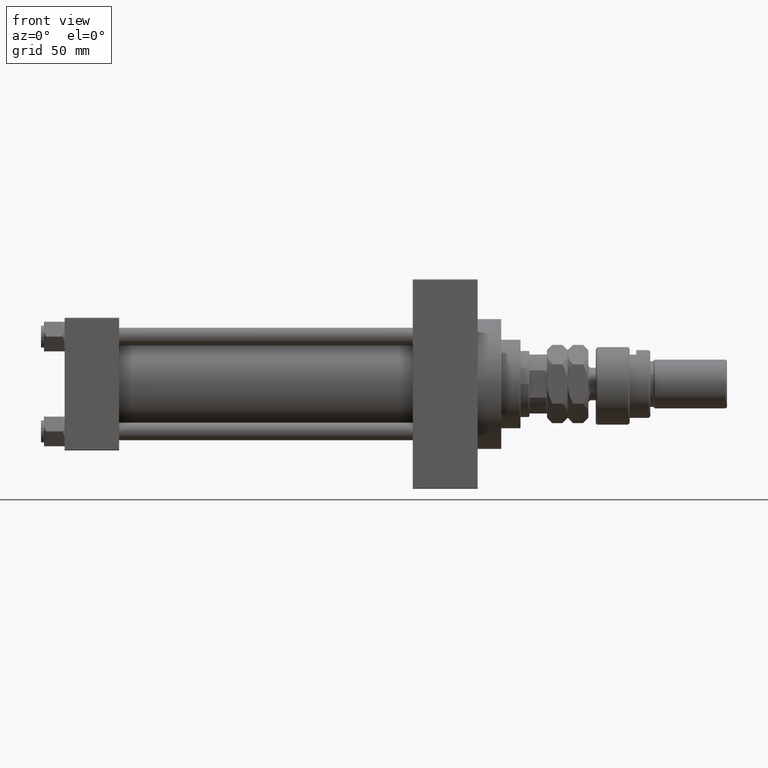
[diagram: clean part render]
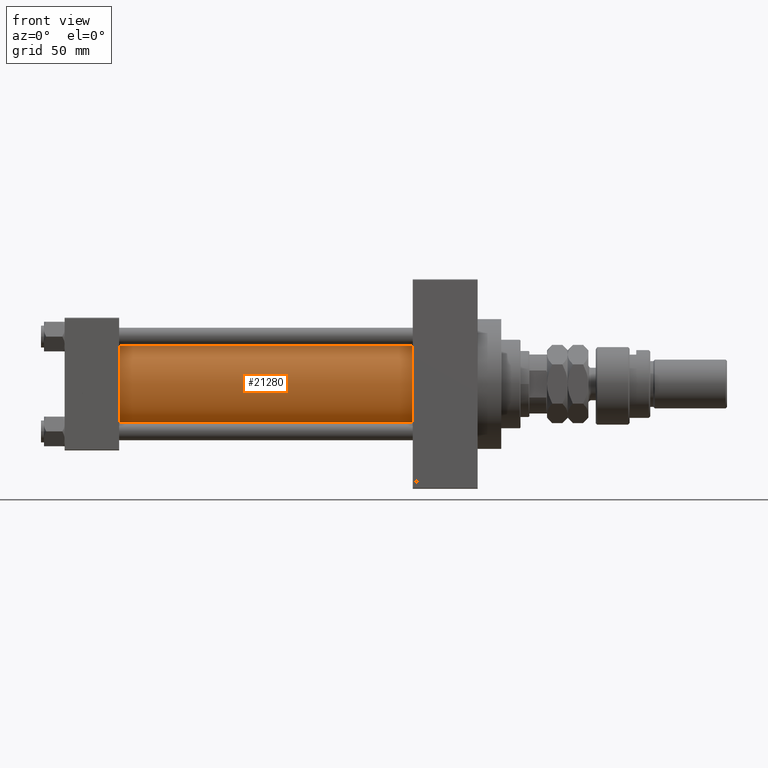
[diagram: same view with one face highlighted and labeled with its STEP entity id]
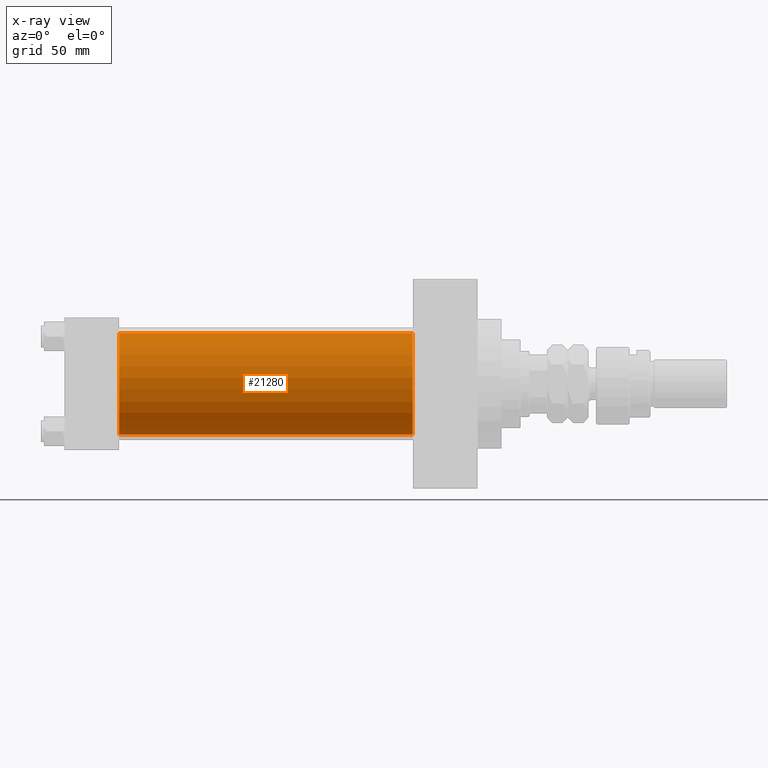
[diagram: x-ray of the same camera — body ghosted, the highlighted face saturated]
A machine part, front view. The second image highlights one B-rep face of the part: STEP entity #21280.
The next image is the same camera in x-ray: the body ghosted, the highlighted face saturated — about 0% of this face is hidden behind the body in this view.
In plain terms, the highlighted cylindrical surface (partial cylindrical patch) has radius 34.5 mm, axis along (-1, -0, -0).
Its self-contained STEP definition (entity closure, byte-faithful):
#1634 = VERTEX_POINT ( 'NONE', #18379 ) ;
#2767 = ORIENTED_EDGE ( 'NONE', *, *, #17794, .F. ) ;
#6529 = LINE ( 'NONE', #9725, #37799 ) ;
#7302 = DIRECTION ( 'NONE',  ( -1.000000000000000000, -0.000000000000000000, -0.000000000000000000 ) ) ;
#8756 = EDGE_LOOP ( 'NONE', ( #2767, #18605, #8840, #41111 ) ) ;
#8840 = ORIENTED_EDGE ( 'NONE', *, *, #47873, .T. ) ;
#8868 = LINE ( 'NONE', #48992, #35100 ) ;
#9401 = DIRECTION ( 'NONE',  ( 1.000000000000000000, 0.000000000000000000, 0.000000000000000000 ) ) ;
#9725 = CARTESIAN_POINT ( 'NONE',  ( 236.0000000000000284, -2.602085213965210642E-15, 34.50000000000000000 ) ) ;
#10188 = VERTEX_POINT ( 'NONE', #41467 ) ;
#10291 = CARTESIAN_POINT ( 'NONE',  ( 37.00000000000000711, -2.602085213965210642E-15, 0.000000000000000000 ) ) ;
#13699 = DIRECTION ( 'NONE',  ( -1.000000000000000000, -0.000000000000000000, -0.000000000000000000 ) ) ;
#14252 = DIRECTION ( 'NONE',  ( 0.000000000000000000, 0.000000000000000000, 1.000000000000000000 ) ) ;
#16696 = EDGE_CURVE ( 'NONE', #44931, #1634, #22389, .T. ) ;
#17794 = EDGE_CURVE ( 'NONE', #1634, #47706, #8868, .T. ) ;
#18379 = CARTESIAN_POINT ( 'NONE',  ( 236.0000000000000284, 1.622946243093158675E-15, -34.50000000000000000 ) ) ;
#18605 = ORIENTED_EDGE ( 'NONE', *, *, #16696, .F. ) ;
#19144 = EDGE_CURVE ( 'NONE', #10188, #47706, #20782, .T. ) ;
#20782 = CIRCLE ( 'NONE', #45220, 34.50000000000000000 ) ;
#21280 = ADVANCED_FACE ( 'NONE', ( #27113 ), #47157, .T. ) ;
#22389 = CIRCLE ( 'NONE', #45149, 34.50000000000000000 ) ;
#23732 = CARTESIAN_POINT ( 'NONE',  ( 37.00000000000000711, 1.622946243093158675E-15, -34.50000000000000000 ) ) ;
#24241 = AXIS2_PLACEMENT_3D ( 'NONE', #51628, #7302, #38456 ) ;
#25750 = CARTESIAN_POINT ( 'NONE',  ( 236.0000000000000284, -2.602085213965210642E-15, 0.000000000000000000 ) ) ;
#27113 = FACE_OUTER_BOUND ( 'NONE', #8756, .T. ) ;
#28929 = DIRECTION ( 'NONE',  ( 0.000000000000000000, 0.000000000000000000, -1.000000000000000000 ) ) ;
#33937 = DIRECTION ( 'NONE',  ( -1.000000000000000000, -0.000000000000000000, -0.000000000000000000 ) ) ;
#35070 = DIRECTION ( 'NONE',  ( 1.000000000000000000, -0.000000000000000000, 0.000000000000000000 ) ) ;
#35100 = VECTOR ( 'NONE', #33937, 1000.000000000000000 ) ;
#36154 = CARTESIAN_POINT ( 'NONE',  ( 236.0000000000000284, -2.602085213965210642E-15, 34.50000000000000000 ) ) ;
#37799 = VECTOR ( 'NONE', #13699, 1000.000000000000000 ) ;
#38456 = DIRECTION ( 'NONE',  ( 0.000000000000000000, 0.000000000000000000, 1.000000000000000000 ) ) ;
#41111 = ORIENTED_EDGE ( 'NONE', *, *, #19144, .T. ) ;
#41467 = CARTESIAN_POINT ( 'NONE',  ( 37.00000000000000711, -2.602085213965210642E-15, 34.50000000000000000 ) ) ;
#44931 = VERTEX_POINT ( 'NONE', #36154 ) ;
#45149 = AXIS2_PLACEMENT_3D ( 'NONE', #25750, #9401, #28929 ) ;
#45220 = AXIS2_PLACEMENT_3D ( 'NONE', #10291, #35070, #14252 ) ;
#47157 = CYLINDRICAL_SURFACE ( 'NONE', #24241, 34.50000000000000000 ) ;
#47706 = VERTEX_POINT ( 'NONE', #23732 ) ;
#47873 = EDGE_CURVE ( 'NONE', #44931, #10188, #6529, .T. ) ;
#48992 = CARTESIAN_POINT ( 'NONE',  ( 236.0000000000000284, 1.622946243093158675E-15, -34.50000000000000000 ) ) ;
#51628 = CARTESIAN_POINT ( 'NONE',  ( 236.0000000000000284, -2.602085213965210642E-15, 0.000000000000000000 ) ) ;